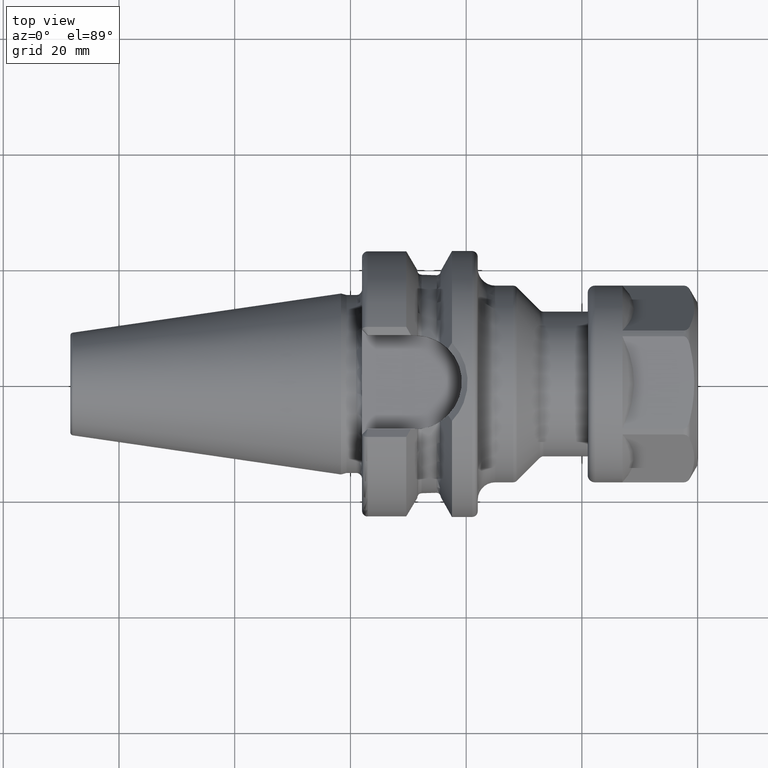
[diagram: clean part render]
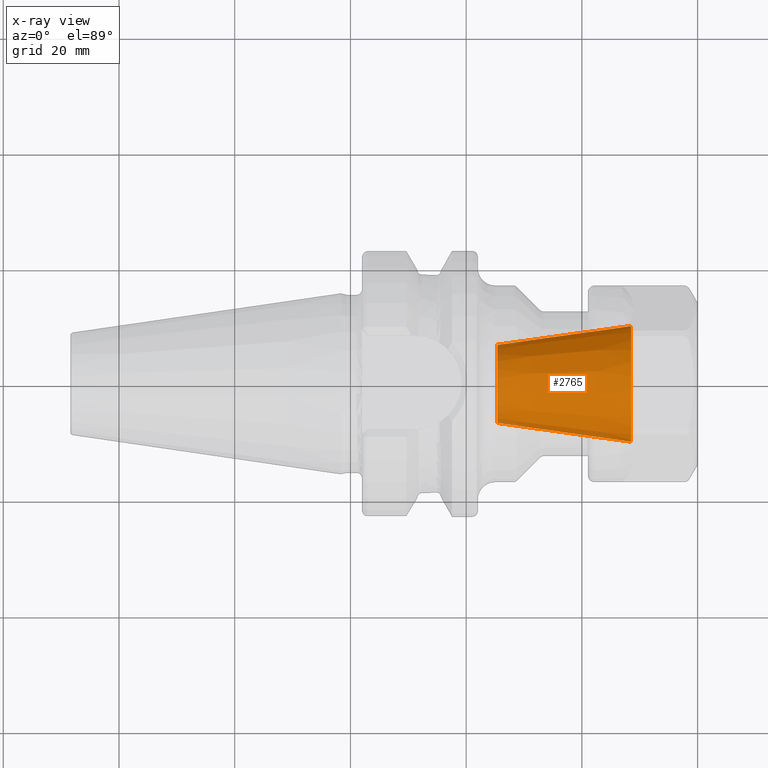
[diagram: x-ray — body ghosted, one internal face saturated and labeled with its STEP entity id]
A machine part, top view, then the same camera in x-ray: the body is ghosted and one INTERNAL B-rep face — a face not visible from any outside direction — is saturated and labeled: STEP entity #2765.
In plain terms, the highlighted conical surface has half-angle 8 deg.
Its self-contained STEP definition (entity closure, byte-faithful):
#946=CARTESIAN_POINT('',(4.85E1,0.E0,0.E0));
#947=DIRECTION('',(1.E0,0.E0,0.E0));
#948=DIRECTION('',(0.E0,1.E0,0.E0));
#949=AXIS2_PLACEMENT_3D('',#946,#947,#948);
#956=DIRECTION('',(-9.902680687416E-1,1.391731009601E-1,0.E0));
#957=VECTOR('',#956,2.335221373657E1);
#958=CARTESIAN_POINT('',(4.85E1,-1.E1,0.E0));
#959=LINE('',#958,#957);
#960=DIRECTION('',(-9.902680687416E-1,-1.391731009601E-1,0.E0));
#961=VECTOR('',#960,2.335221373657E1);
#962=CARTESIAN_POINT('',(4.85E1,1.E1,0.E0));
#963=LINE('',#962,#961);
#977=CARTESIAN_POINT('',(2.537504840225E1,0.E0,0.E0));
#978=DIRECTION('',(1.E0,0.E0,0.E0));
#979=DIRECTION('',(0.E0,1.E0,0.E0));
#980=AXIS2_PLACEMENT_3D('',#977,#978,#979);
#1431=CARTESIAN_POINT('',(2.537504840225E1,6.75E0,0.E0));
#1433=VERTEX_POINT('',#1431);
#1435=CARTESIAN_POINT('',(2.537504840225E1,-6.75E0,0.E0));
#1437=VERTEX_POINT('',#1435);
#1439=CARTESIAN_POINT('',(4.85E1,1.E1,0.E0));
#1440=CARTESIAN_POINT('',(4.85E1,-1.E1,0.E0));
#1441=VERTEX_POINT('',#1439);
#1442=VERTEX_POINT('',#1440);
#2751=CARTESIAN_POINT('',(3.693752420113E1,0.E0,0.E0));
#2752=DIRECTION('',(1.E0,0.E0,0.E0));
#2753=DIRECTION('',(0.E0,-1.E0,0.E0));
#2754=AXIS2_PLACEMENT_3D('',#2751,#2752,#2753);
#2755=CONICAL_SURFACE('',#2754,8.375E0,8.E0);
#2756=ORIENTED_EDGE('',*,*,#2744,.F.);
#2758=ORIENTED_EDGE('',*,*,#2757,.T.);
#2760=ORIENTED_EDGE('',*,*,#2759,.T.);
#2762=ORIENTED_EDGE('',*,*,#2761,.F.);
#2763=EDGE_LOOP('',(#2756,#2758,#2760,#2762));
#2764=FACE_OUTER_BOUND('',#2763,.F.);
#2765=ADVANCED_FACE('',(#2764),#2755,.F.);
#950=CIRCLE('',#949,1.E1);
#981=CIRCLE('',#980,6.75E0);
#2744=EDGE_CURVE('',#1441,#1442,#950,.T.);
#2757=EDGE_CURVE('',#1441,#1433,#963,.T.);
#2759=EDGE_CURVE('',#1433,#1437,#981,.T.);
#2761=EDGE_CURVE('',#1442,#1437,#959,.T.);